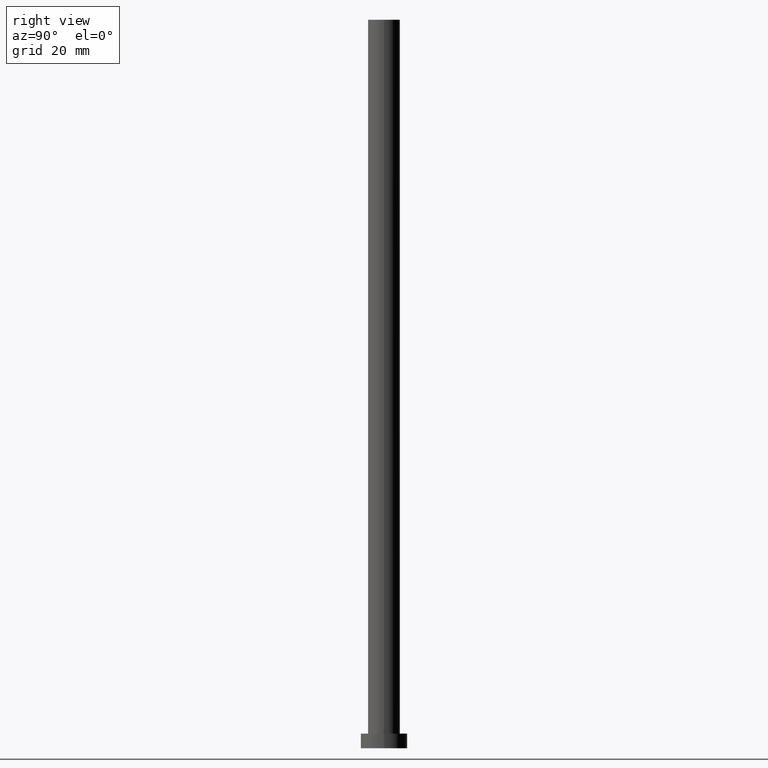
[diagram: clean part render]
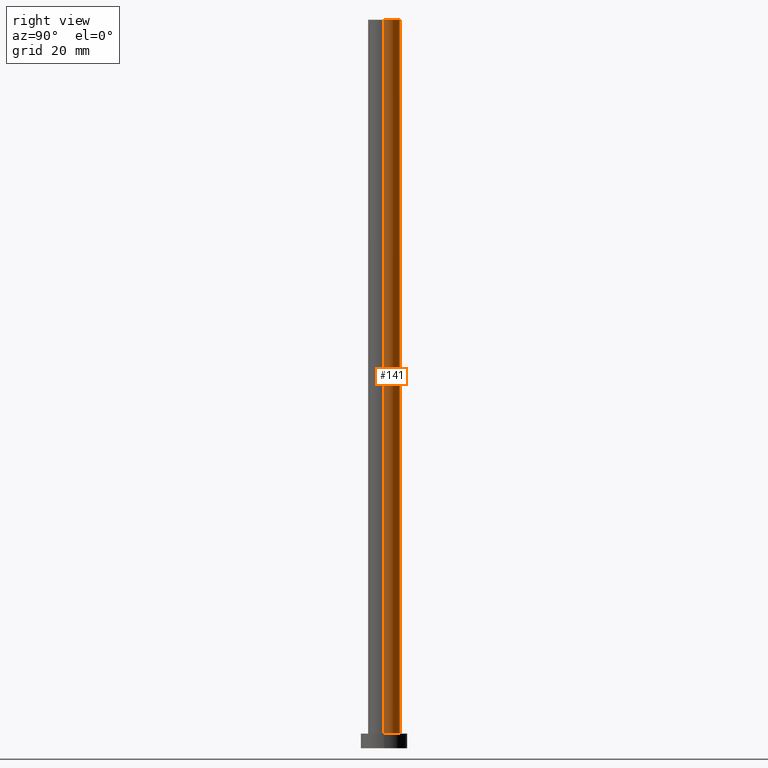
[diagram: same view with one face highlighted and labeled with its STEP entity id]
A machine part, right view. The second image highlights one B-rep face of the part: STEP entity #141.
In plain terms, the highlighted cylindrical surface (edge-blend (fillet) strip) has radius 5.5 mm, axis along (-0, -0, -1).
Its self-contained STEP definition (entity closure, byte-faithful):
#3 = ORIENTED_EDGE ( 'NONE', *, *, #97, .T. ) ;
#6 = EDGE_LOOP ( 'NONE', ( #103, #169, #3, #191 ) ) ;
#12 = LINE ( 'NONE', #222, #20 ) ;
#16 = CARTESIAN_POINT ( 'NONE',  ( -5.500000000000000000, 0.000000000000000000, 250.0000000000000000 ) ) ;
#18 = DIRECTION ( 'NONE',  ( 0.000000000000000000, 0.000000000000000000, 1.000000000000000000 ) ) ;
#20 = VECTOR ( 'NONE', #81, 1000.000000000000000 ) ;
#29 = VERTEX_POINT ( 'NONE', #126 ) ;
#31 = CARTESIAN_POINT ( 'NONE',  ( 0.000000000000000000, 0.000000000000000000, 250.0000000000000000 ) ) ;
#47 = DIRECTION ( 'NONE',  ( -0.000000000000000000, -0.000000000000000000, -1.000000000000000000 ) ) ;
#52 = CARTESIAN_POINT ( 'NONE',  ( 5.500000000000000000, 6.735557395310442023E-16, 250.0000000000000000 ) ) ;
#64 = CARTESIAN_POINT ( 'NONE',  ( 0.000000000000000000, 0.000000000000000000, 5.000000000000000000 ) ) ;
#72 = EDGE_CURVE ( 'NONE', #152, #99, #12, .T. ) ;
#81 = DIRECTION ( 'NONE',  ( -0.000000000000000000, -0.000000000000000000, -1.000000000000000000 ) ) ;
#87 = CARTESIAN_POINT ( 'NONE',  ( -5.500000000000000000, 0.000000000000000000, 250.0000000000000000 ) ) ;
#95 = CARTESIAN_POINT ( 'NONE',  ( 0.000000000000000000, 0.000000000000000000, 250.0000000000000000 ) ) ;
#97 = EDGE_CURVE ( 'NONE', #99, #29, #224, .T. ) ;
#99 = VERTEX_POINT ( 'NONE', #116 ) ;
#103 = ORIENTED_EDGE ( 'NONE', *, *, #188, .F. ) ;
#111 = VECTOR ( 'NONE', #134, 1000.000000000000000 ) ;
#113 = LINE ( 'NONE', #16, #111 ) ;
#116 = CARTESIAN_POINT ( 'NONE',  ( 5.500000000000000000, 6.735557395310442023E-16, 5.000000000000000000 ) ) ;
#126 = CARTESIAN_POINT ( 'NONE',  ( -5.500000000000000000, 0.000000000000000000, 5.000000000000000000 ) ) ;
#129 = EDGE_CURVE ( 'NONE', #209, #29, #113, .T. ) ;
#132 = DIRECTION ( 'NONE',  ( -1.000000000000000000, 0.000000000000000000, 0.000000000000000000 ) ) ;
#134 = DIRECTION ( 'NONE',  ( -0.000000000000000000, -0.000000000000000000, -1.000000000000000000 ) ) ;
#141 = ADVANCED_FACE ( 'NONE', ( #163 ), #251, .T. ) ;
#143 = AXIS2_PLACEMENT_3D ( 'NONE', #31, #18, #158 ) ;
#152 = VERTEX_POINT ( 'NONE', #52 ) ;
#153 = DIRECTION ( 'NONE',  ( 0.000000000000000000, 0.000000000000000000, 1.000000000000000000 ) ) ;
#158 = DIRECTION ( 'NONE',  ( 1.000000000000000000, 0.000000000000000000, 0.000000000000000000 ) ) ;
#163 = FACE_OUTER_BOUND ( 'NONE', #6, .T. ) ;
#169 = ORIENTED_EDGE ( 'NONE', *, *, #72, .T. ) ;
#183 = CIRCLE ( 'NONE', #143, 5.500000000000000000 ) ;
#188 = EDGE_CURVE ( 'NONE', #152, #209, #183, .T. ) ;
#191 = ORIENTED_EDGE ( 'NONE', *, *, #129, .F. ) ;
#209 = VERTEX_POINT ( 'NONE', #87 ) ;
#221 = AXIS2_PLACEMENT_3D ( 'NONE', #95, #47, #132 ) ;
#222 = CARTESIAN_POINT ( 'NONE',  ( 5.500000000000000000, 6.735557395310442023E-16, 250.0000000000000000 ) ) ;
#224 = CIRCLE ( 'NONE', #236, 5.500000000000000000 ) ;
#232 = DIRECTION ( 'NONE',  ( 1.000000000000000000, 0.000000000000000000, 0.000000000000000000 ) ) ;
#236 = AXIS2_PLACEMENT_3D ( 'NONE', #64, #153, #232 ) ;
#251 = CYLINDRICAL_SURFACE ( 'NONE', #221, 5.500000000000000000 ) ;